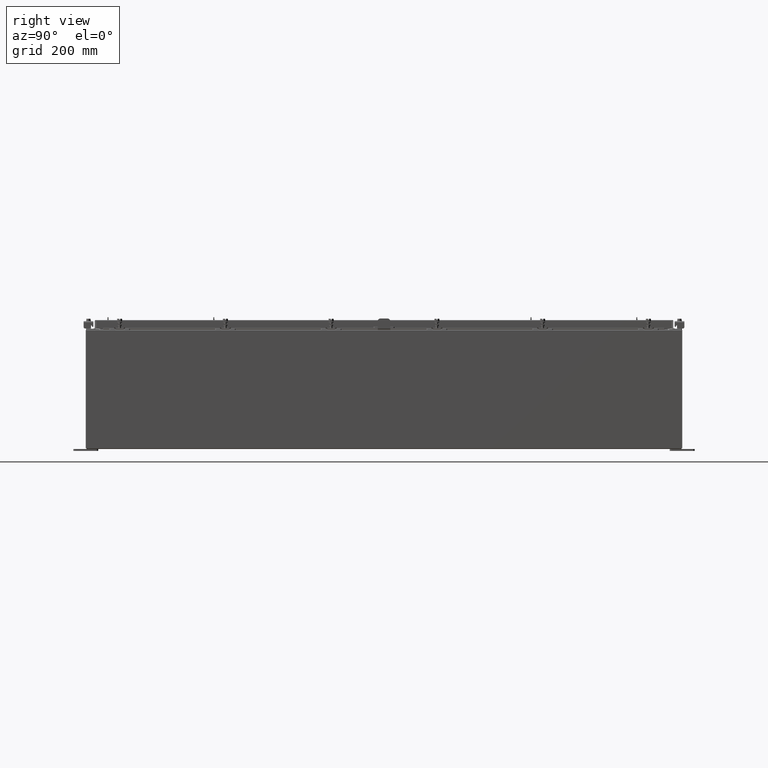
[diagram: clean part render]
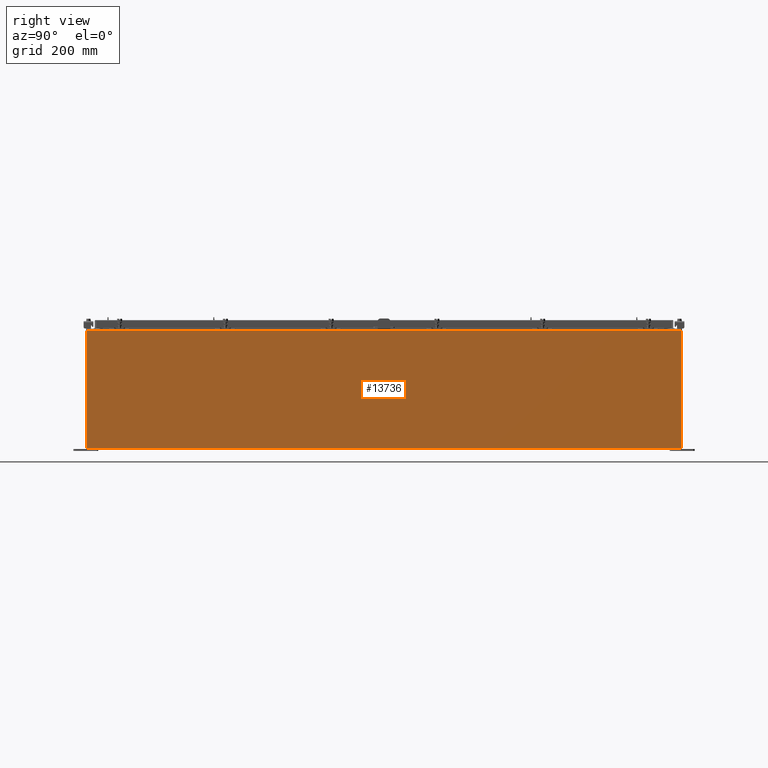
[diagram: same view with one face highlighted and labeled with its STEP entity id]
A machine part, right view. The second image highlights one B-rep face of the part: STEP entity #13736.
In plain terms, the highlighted planar face has unit normal (-1, 0, 0).
Its self-contained STEP definition (entity closure, byte-faithful):
#770 = LINE ( 'NONE', #2238, #6433 ) ;
#867 = CARTESIAN_POINT ( 'NONE',  ( 17.99999999999999600, 29.92529999999998900, -6.293710784286996200E-014 ) ) ;
#996 = CARTESIAN_POINT ( 'NONE',  ( 18.00000000000003900, 29.92529999999999300, 11.83760000000000200 ) ) ;
#1335 = DIRECTION ( 'NONE',  ( 3.482016343714355100E-015, 0.0000000000000000000, 1.000000000000000000 ) ) ;
#1344 = CARTESIAN_POINT ( 'NONE',  ( 17.99999999999999600, -29.92530000000001100, 0.01299999999999984700 ) ) ;
#1875 = EDGE_CURVE ( 'NONE', #25697, #19658, #21535, .T. ) ;
#2238 = CARTESIAN_POINT ( 'NONE',  ( 17.99999999999999600, -29.92530000000001100, -6.293710784286996200E-014 ) ) ;
#2920 = VECTOR ( 'NONE', #26632, 39.37007874015748100 ) ;
#4359 = EDGE_LOOP ( 'NONE', ( #18805, #5998, #20270, #10314 ) ) ;
#5292 = DIRECTION ( 'NONE',  ( -0.0000000000000000000, -1.000000000000000000, -0.0000000000000000000 ) ) ;
#5324 = CARTESIAN_POINT ( 'NONE',  ( 17.99999999999999600, -29.92530000000001100, 0.01299999999999984700 ) ) ;
#5743 = VERTEX_POINT ( 'NONE', #1344 ) ;
#5998 = ORIENTED_EDGE ( 'NONE', *, *, #12583, .T. ) ;
#6433 = VECTOR ( 'NONE', #14985, 39.37007874015748100 ) ;
#7288 = DIRECTION ( 'NONE',  ( 3.482016343714355500E-015, 0.0000000000000000000, 1.000000000000000000 ) ) ;
#8079 = CARTESIAN_POINT ( 'NONE',  ( 18.00000000000003900, 29.92529999999999300, 11.83760000000000200 ) ) ;
#8620 = LINE ( 'NONE', #5324, #2920 ) ;
#10314 = ORIENTED_EDGE ( 'NONE', *, *, #22974, .T. ) ;
#11936 = PLANE ( 'NONE',  #18445 ) ;
#12583 = EDGE_CURVE ( 'NONE', #19658, #5743, #770, .T. ) ;
#13392 = VECTOR ( 'NONE', #7288, 39.37007874015748100 ) ;
#13736 = ADVANCED_FACE ( 'NONE', ( #17053 ), #11936, .F. ) ;
#14083 = DIRECTION ( 'NONE',  ( -1.000000000000000000, 0.0000000000000000000, 3.482016343714355100E-015 ) ) ;
#14985 = DIRECTION ( 'NONE',  ( -3.482016343714355500E-015, 0.0000000000000000000, -1.000000000000000000 ) ) ;
#15836 = VECTOR ( 'NONE', #5292, 39.37007874015748100 ) ;
#15938 = CARTESIAN_POINT ( 'NONE',  ( 17.99999999999999600, 29.92529999999999300, 0.01299999999999984700 ) ) ;
#17053 = FACE_OUTER_BOUND ( 'NONE', #4359, .T. ) ;
#18445 = AXIS2_PLACEMENT_3D ( 'NONE', #26842, #14083, #1335 ) ;
#18805 = ORIENTED_EDGE ( 'NONE', *, *, #1875, .T. ) ;
#19658 = VERTEX_POINT ( 'NONE', #22243 ) ;
#19733 = LINE ( 'NONE', #867, #13392 ) ;
#20270 = ORIENTED_EDGE ( 'NONE', *, *, #26869, .F. ) ;
#21535 = LINE ( 'NONE', #996, #15836 ) ;
#22243 = CARTESIAN_POINT ( 'NONE',  ( 18.00000000000003900, -29.92530000000001100, 11.83760000000000200 ) ) ;
#22974 = EDGE_CURVE ( 'NONE', #26086, #25697, #19733, .T. ) ;
#25697 = VERTEX_POINT ( 'NONE', #8079 ) ;
#26086 = VERTEX_POINT ( 'NONE', #15938 ) ;
#26632 = DIRECTION ( 'NONE',  ( -0.0000000000000000000, -1.000000000000000000, -0.0000000000000000000 ) ) ;
#26842 = CARTESIAN_POINT ( 'NONE',  ( 17.99999999999999600, 0.0000000000000000000, -6.293710784286996200E-014 ) ) ;
#26869 = EDGE_CURVE ( 'NONE', #26086, #5743, #8620, .T. ) ;